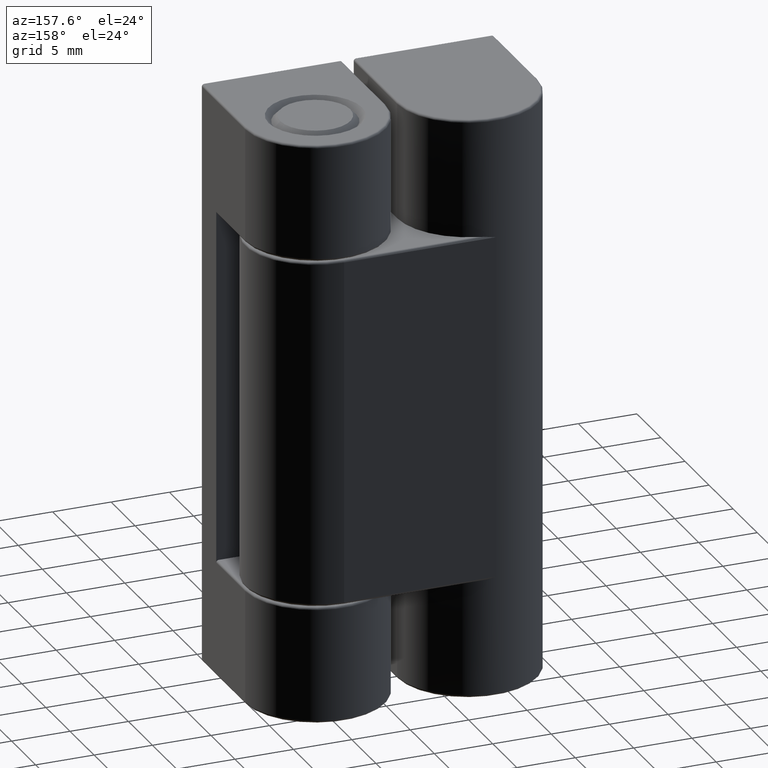
[diagram: clean part render]
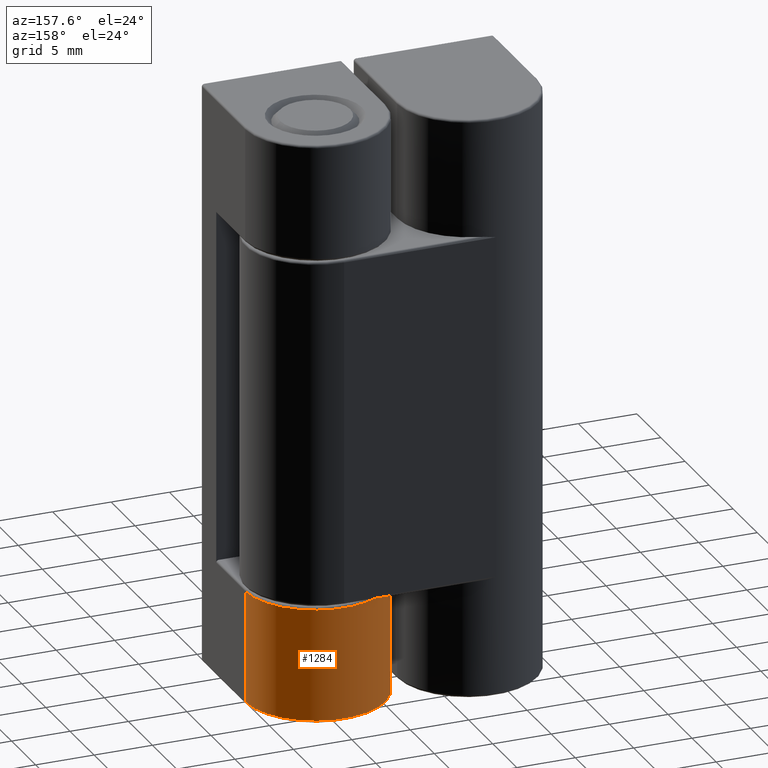
[diagram: same view with one face highlighted and labeled with its STEP entity id]
A machine part, auxiliary view. The second image highlights one B-rep face of the part: STEP entity #1284.
In plain terms, the highlighted cylindrical surface (partial cylindrical patch) has radius 6 mm, axis along (0, 0, -1).
Its self-contained STEP definition (entity closure, byte-faithful):
#164=FACE_OUTER_BOUND('',#258,.T.);
#258=EDGE_LOOP('',(#1104,#1105,#1106,#1107));
#366=LINE('',#2231,#465);
#367=LINE('',#2234,#466);
#465=VECTOR('',#1759,9.60000000000001);
#466=VECTOR('',#1762,9.60000000000001);
#534=CIRCLE('',#1413,6.);
#536=CIRCLE('',#1417,6.);
#648=VERTEX_POINT('',#2218);
#649=VERTEX_POINT('',#2222);
#651=VERTEX_POINT('',#2230);
#652=VERTEX_POINT('',#2232);
#806=EDGE_CURVE('',#648,#649,#534,.T.);
#809=EDGE_CURVE('',#651,#648,#366,.T.);
#810=EDGE_CURVE('',#652,#651,#536,.T.);
#811=EDGE_CURVE('',#652,#649,#367,.T.);
#1104=ORIENTED_EDGE('',*,*,#806,.F.);
#1105=ORIENTED_EDGE('',*,*,#809,.F.);
#1106=ORIENTED_EDGE('',*,*,#810,.F.);
#1107=ORIENTED_EDGE('',*,*,#811,.T.);
#1221=CYLINDRICAL_SURFACE('',#1416,6.);
#1284=ADVANCED_FACE('',(#164),#1221,.T.);
#1413=AXIS2_PLACEMENT_3D('',#2224,#1750,#1751);
#1416=AXIS2_PLACEMENT_3D('',#2229,#1757,#1758);
#1417=AXIS2_PLACEMENT_3D('',#2233,#1760,#1761);
#1750=DIRECTION('center_axis',(0.,0.,-1.));
#1751=DIRECTION('ref_axis',(-6.12323399573677E-17,1.,0.));
#1757=DIRECTION('center_axis',(0.,0.,-1.));
#1758=DIRECTION('ref_axis',(-1.,0.,0.));
#1759=DIRECTION('',(0.,0.,-1.));
#1760=DIRECTION('center_axis',(0.,0.,1.));
#1761=DIRECTION('ref_axis',(-6.12323399573677E-17,1.,0.));
#1762=DIRECTION('',(0.,0.,-1.));
#2218=CARTESIAN_POINT('',(-6.,9.,-49.8));
#2222=CARTESIAN_POINT('',(6.,9.,-49.8));
#2224=CARTESIAN_POINT('Origin',(-1.40834381901946E-15,9.,-49.8));
#2229=CARTESIAN_POINT('Origin',(-1.40834381901946E-15,9.,0.));
#2230=CARTESIAN_POINT('',(-6.,9.,-40.2));
#2231=CARTESIAN_POINT('',(-6.,9.,0.));
#2232=CARTESIAN_POINT('',(6.,9.,-40.2));
#2233=CARTESIAN_POINT('Origin',(-1.40834381901946E-15,9.,-40.2));
#2234=CARTESIAN_POINT('',(6.,9.,0.));